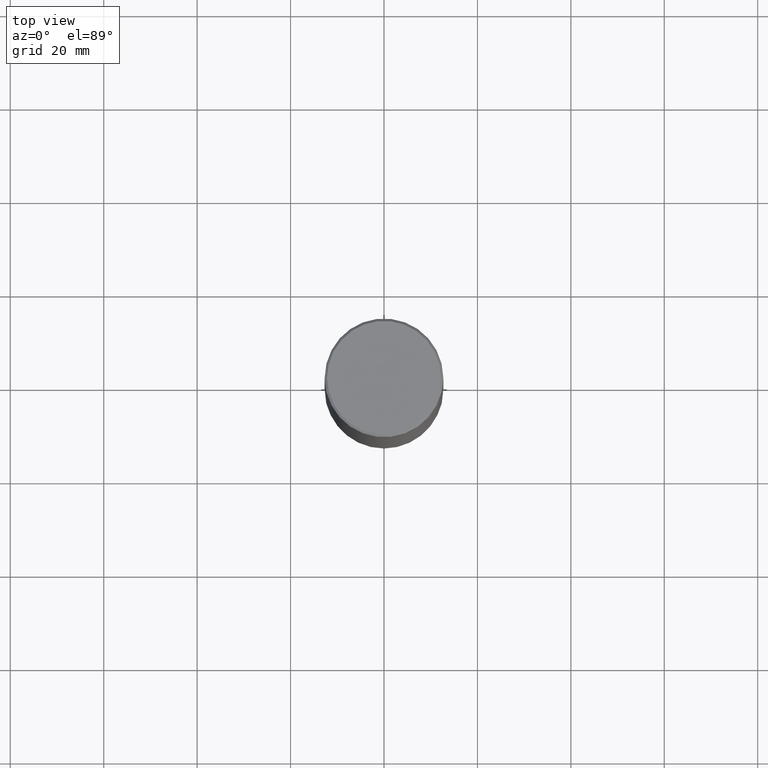
[diagram: clean part render]
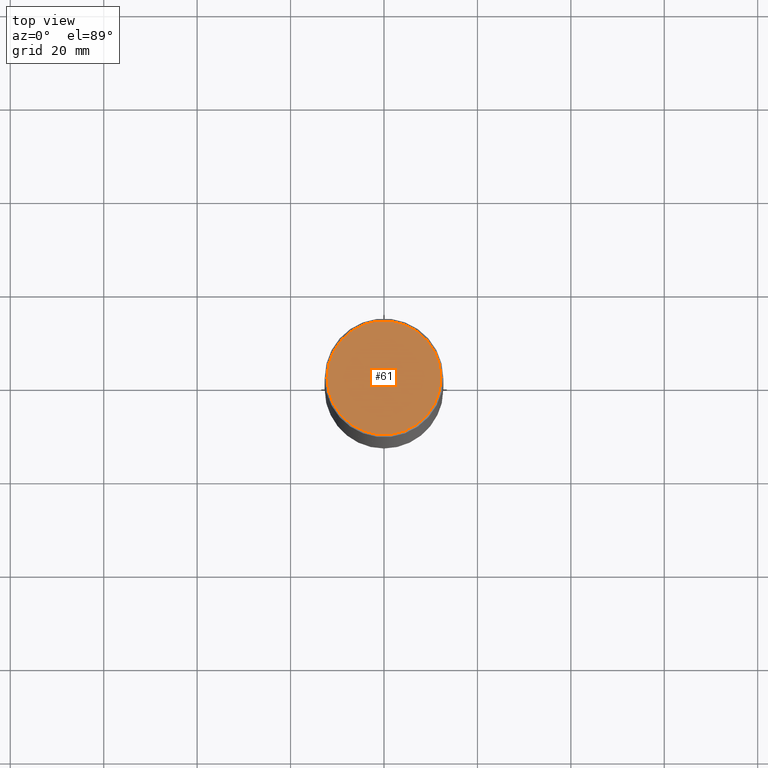
[diagram: same view with one face highlighted and labeled with its STEP entity id]
A machine part, top view. The second image highlights one B-rep face of the part: STEP entity #61.
In plain terms, the highlighted planar face has unit normal (0, -0, -1).
Its self-contained STEP definition (entity closure, byte-faithful):
#12 = CIRCLE ( 'NONE', #225, 0.4800000000000003708 ) ;
#61 = ADVANCED_FACE ( 'NONE', ( #76 ), #238, .F. ) ;
#72 = ORIENTED_EDGE ( 'NONE', *, *, #247, .T. ) ;
#76 = FACE_OUTER_BOUND ( 'NONE', #268, .T. ) ;
#79 = AXIS2_PLACEMENT_3D ( 'NONE', #211, #106, #370 ) ;
#84 = DIRECTION ( 'NONE',  ( 1.000000000000000000, -6.982962677686266711E-15, 4.878011538933546479E-29 ) ) ;
#85 = EDGE_CURVE ( 'NONE', #167, #318, #96, .T. ) ;
#88 = CARTESIAN_POINT ( 'NONE',  ( 8.872737021849368446E-45, -1.266791694823380303E-30, -3.628235616585349371E-16 ) ) ;
#96 = CIRCLE ( 'NONE', #367, 0.4800000000000003708 ) ;
#106 = DIRECTION ( 'NONE',  ( 2.438088387897960049E-29, -3.491481338843145188E-15, -1.000000000000000000 ) ) ;
#115 = DIRECTION ( 'NONE',  ( -2.445468806185136597E-29, 3.491481338843145583E-15, 1.000000000000000000 ) ) ;
#167 = VERTEX_POINT ( 'NONE', #217 ) ;
#211 = CARTESIAN_POINT ( 'NONE',  ( 3.351822085289410309E-15, 0.4800000000000003708, -1.857322823473978811E-15 ) ) ;
#217 = CARTESIAN_POINT ( 'NONE',  ( 0.4800000000000003708, -3.396558832296484071E-15, -3.628235616585113699E-16 ) ) ;
#225 = AXIS2_PLACEMENT_3D ( 'NONE', #88, #250, #375 ) ;
#238 = PLANE ( 'NONE',  #79 ) ;
#247 = EDGE_CURVE ( 'NONE', #318, #167, #12, .T. ) ;
#250 = DIRECTION ( 'NONE',  ( -2.445468806185136597E-29, 3.491481338843145583E-15, 1.000000000000000000 ) ) ;
#268 = EDGE_LOOP ( 'NONE', ( #72, #389 ) ) ;
#318 = VERTEX_POINT ( 'NONE', #356 ) ;
#356 = CARTESIAN_POINT ( 'NONE',  ( -0.4800000000000003708, 3.386736898677839197E-15, -3.628235616585585043E-16 ) ) ;
#365 = CARTESIAN_POINT ( 'NONE',  ( 8.872737021849368446E-45, -1.266791694823380303E-30, -3.628235616585349371E-16 ) ) ;
#367 = AXIS2_PLACEMENT_3D ( 'NONE', #365, #115, #84 ) ;
#370 = DIRECTION ( 'NONE',  ( -1.000000000000000000, 6.982962677686265922E-15, -4.876176775795935793E-29 ) ) ;
#375 = DIRECTION ( 'NONE',  ( 1.000000000000000000, -6.982962677686266711E-15, 4.878011538933546479E-29 ) ) ;
#389 = ORIENTED_EDGE ( 'NONE', *, *, #85, .T. ) ;